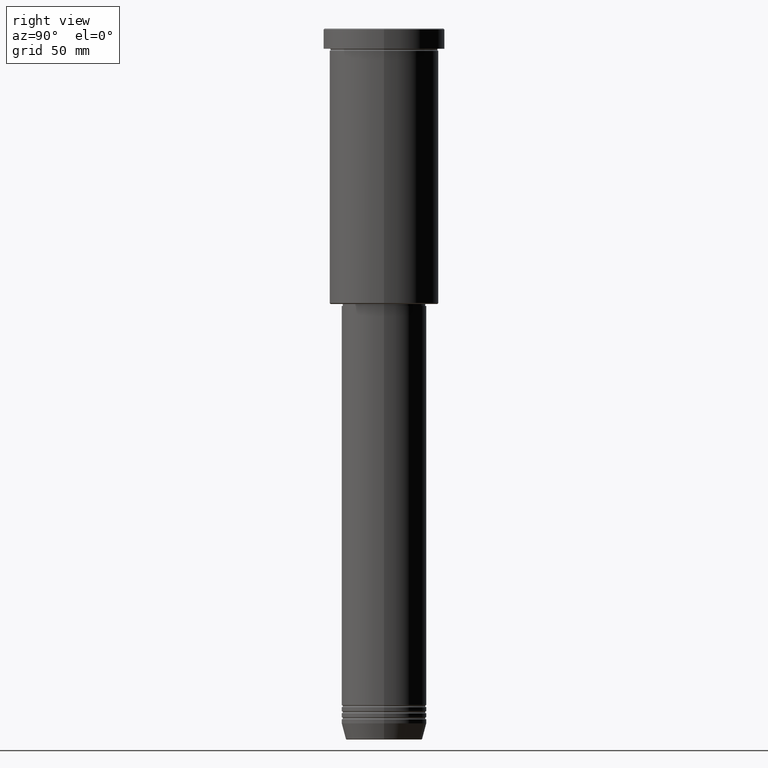
[diagram: clean part render]
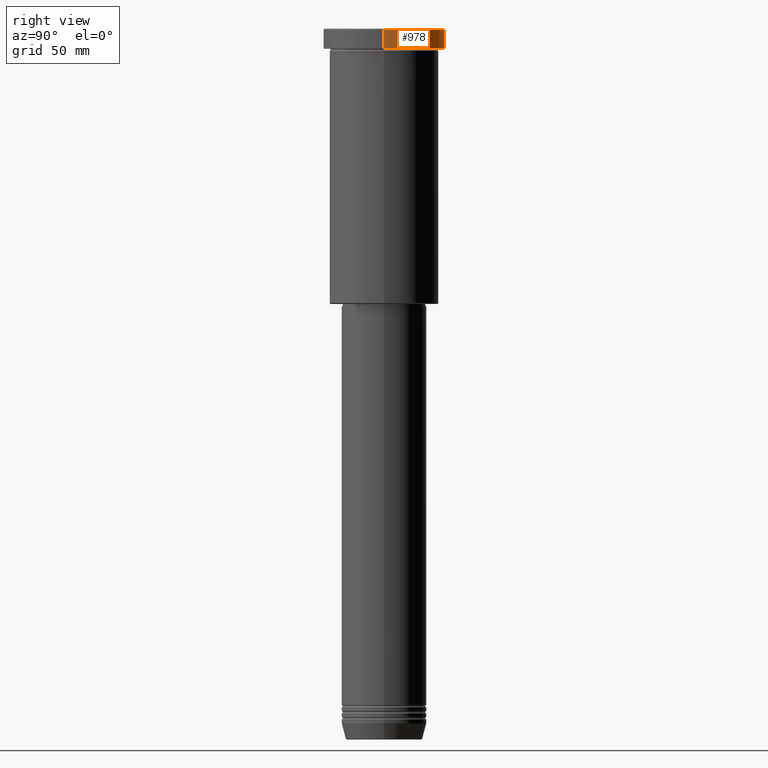
[diagram: same view with one face highlighted and labeled with its STEP entity id]
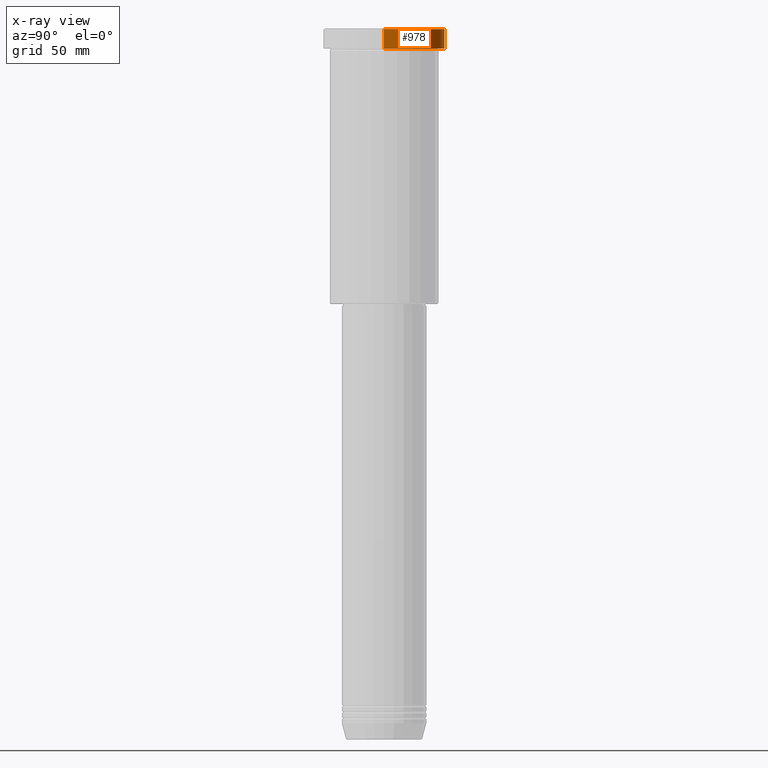
[diagram: x-ray of the same camera — body ghosted, the highlighted face saturated]
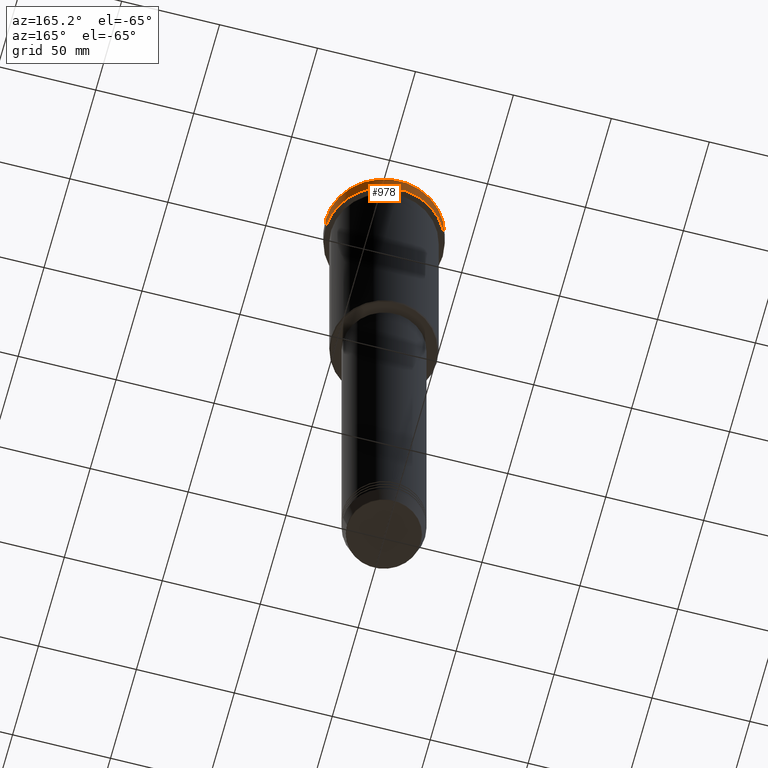
[diagram: same view with one face highlighted and labeled with its STEP entity id]
A machine part, right view. The second image highlights one B-rep face of the part: STEP entity #978.
The next image is the same camera in x-ray: the body ghosted, the highlighted face saturated — about 0% of this face is hidden behind the body in this view.
A second angle (auxiliary view) of the same face is appended — the face is thin or edge-on in the first view.
In plain terms, the highlighted cylindrical surface (partial cylindrical patch) has radius 30 mm, axis along (-0, -0, 1).
Its self-contained STEP definition (entity closure, byte-faithful):
#63 = VERTEX_POINT ( 'NONE', #220 ) ;
#64 = ORIENTED_EDGE ( 'NONE', *, *, #968, .T. ) ;
#89 = CIRCLE ( 'NONE', #379, 30.00000000000000000 ) ;
#103 = CARTESIAN_POINT ( 'NONE',  ( 0.000000000000000000, 0.000000000000000000, -9.999999999999992895 ) ) ;
#125 = DIRECTION ( 'NONE',  ( 1.000000000000000000, 0.000000000000000000, 0.000000000000000000 ) ) ;
#171 = CARTESIAN_POINT ( 'NONE',  ( 30.00000000000000000, 0.000000000000000000, -9.999999999999992895 ) ) ;
#179 = CARTESIAN_POINT ( 'NONE',  ( 30.00000000000000000, 0.000000000000000000, -0.5000000000000073275 ) ) ;
#199 = AXIS2_PLACEMENT_3D ( 'NONE', #678, #592, #125 ) ;
#210 = VECTOR ( 'NONE', #218, 1000.000000000000000 ) ;
#218 = DIRECTION ( 'NONE',  ( -0.000000000000000000, -0.000000000000000000, 1.000000000000000000 ) ) ;
#220 = CARTESIAN_POINT ( 'NONE',  ( -30.00000000000000000, 3.673940397442059178E-15, -9.999999999999992895 ) ) ;
#250 = EDGE_CURVE ( 'NONE', #663, #646, #1151, .T. ) ;
#314 = AXIS2_PLACEMENT_3D ( 'NONE', #1121, #560, #377 ) ;
#377 = DIRECTION ( 'NONE',  ( 1.000000000000000000, 0.000000000000000000, 0.000000000000000000 ) ) ;
#379 = AXIS2_PLACEMENT_3D ( 'NONE', #103, #862, #464 ) ;
#414 = VECTOR ( 'NONE', #475, 1000.000000000000000 ) ;
#464 = DIRECTION ( 'NONE',  ( 1.000000000000000000, 0.000000000000000000, 0.000000000000000000 ) ) ;
#475 = DIRECTION ( 'NONE',  ( -0.000000000000000000, -0.000000000000000000, 1.000000000000000000 ) ) ;
#484 = LINE ( 'NONE', #591, #414 ) ;
#493 = FACE_OUTER_BOUND ( 'NONE', #874, .T. ) ;
#524 = ORIENTED_EDGE ( 'NONE', *, *, #824, .T. ) ;
#531 = ORIENTED_EDGE ( 'NONE', *, *, #795, .T. ) ;
#560 = DIRECTION ( 'NONE',  ( 0.000000000000000000, 0.000000000000000000, -1.000000000000000000 ) ) ;
#591 = CARTESIAN_POINT ( 'NONE',  ( -30.00000000000000000, 3.673940397442059178E-15, 0.000000000000000000 ) ) ;
#592 = DIRECTION ( 'NONE',  ( -0.000000000000000000, -0.000000000000000000, 1.000000000000000000 ) ) ;
#646 = VERTEX_POINT ( 'NONE', #179 ) ;
#663 = VERTEX_POINT ( 'NONE', #171 ) ;
#678 = CARTESIAN_POINT ( 'NONE',  ( 0.000000000000000000, 0.000000000000000000, 0.000000000000000000 ) ) ;
#730 = CARTESIAN_POINT ( 'NONE',  ( -30.00000000000000000, 3.673940397442059178E-15, -0.5000000000000073275 ) ) ;
#795 = EDGE_CURVE ( 'NONE', #903, #646, #888, .T. ) ;
#824 = EDGE_CURVE ( 'NONE', #63, #903, #484, .T. ) ;
#862 = DIRECTION ( 'NONE',  ( -0.000000000000000000, -0.000000000000000000, 1.000000000000000000 ) ) ;
#874 = EDGE_LOOP ( 'NONE', ( #64, #524, #531, #1044 ) ) ;
#888 = CIRCLE ( 'NONE', #314, 30.00000000000000000 ) ;
#903 = VERTEX_POINT ( 'NONE', #730 ) ;
#968 = EDGE_CURVE ( 'NONE', #663, #63, #89, .T. ) ;
#978 = ADVANCED_FACE ( 'NONE', ( #493 ), #1116, .T. ) ;
#1044 = ORIENTED_EDGE ( 'NONE', *, *, #250, .F. ) ;
#1054 = CARTESIAN_POINT ( 'NONE',  ( 30.00000000000000000, 0.000000000000000000, 0.000000000000000000 ) ) ;
#1116 = CYLINDRICAL_SURFACE ( 'NONE', #199, 30.00000000000000000 ) ;
#1121 = CARTESIAN_POINT ( 'NONE',  ( 0.000000000000000000, 0.000000000000000000, -0.5000000000000073275 ) ) ;
#1151 = LINE ( 'NONE', #1054, #210 ) ;